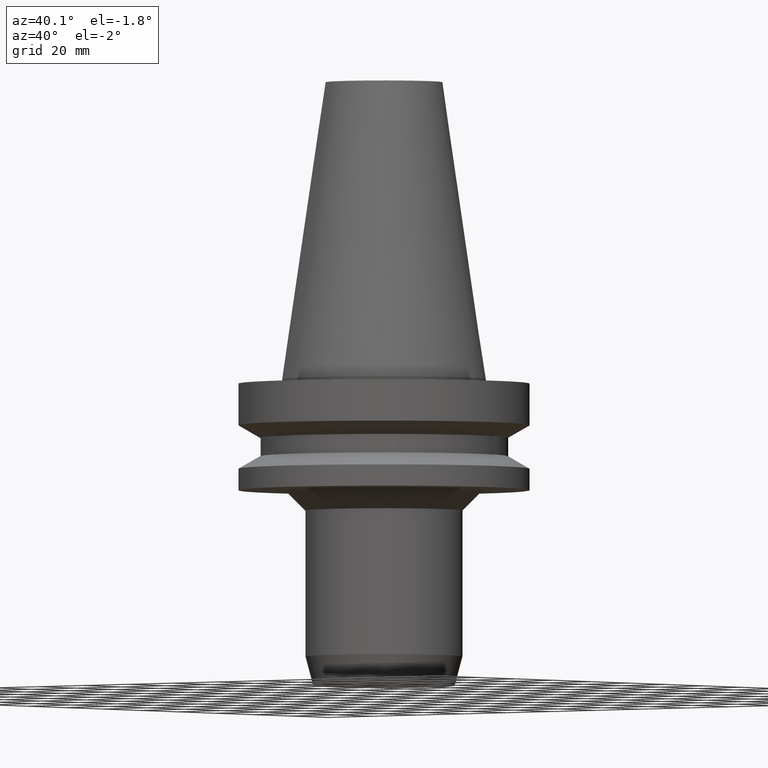
[diagram: clean part render]
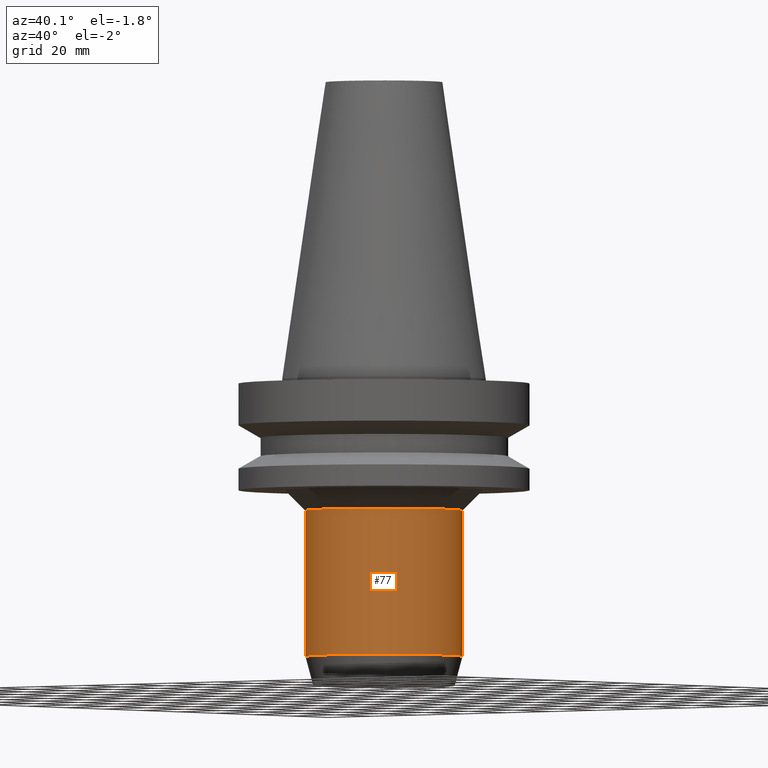
[diagram: same view with one face highlighted and labeled with its STEP entity id]
A machine part, auxiliary view. The second image highlights one B-rep face of the part: STEP entity #77.
In plain terms, the highlighted cylindrical surface (bore or boss wall) has radius 27 mm, axis along (0, 0, -1).
Its self-contained STEP definition (entity closure, byte-faithful):
#77=ADVANCED_FACE('',(#95,#96),#97,.T.);
#95=FACE_BOUND('',#135,.T.);
#96=FACE_BOUND('',#136,.T.);
#97=CYLINDRICAL_SURFACE('',#137,27.0);
#135=EDGE_LOOP('',(#179));
#136=EDGE_LOOP('',(#180));
#137=AXIS2_PLACEMENT_3D('',#181,#182,#183);
#179=ORIENTED_EDGE('',*,*,#240,.F.);
#180=ORIENTED_EDGE('',*,*,#239,.T.);
#181=CARTESIAN_POINT('',(4.28626379634769E-015,8.57252759269539E-015,-69.99999998909));
#182=DIRECTION('',(6.12323399573677E-017,1.22464679914735E-016,-1.0));
#183=DIRECTION('',(-1.23259516440783E-032,1.0,1.22464679914735E-016));
#239=EDGE_CURVE('',#253,#253,#254,.T.);
#240=EDGE_CURVE('',#255,#255,#256,.T.);
#253=VERTEX_POINT('',#279);
#254=CIRCLE('',#280,27.0);
#255=VERTEX_POINT('',#281);
#256=CIRCLE('',#282,27.0);
#279=CARTESIAN_POINT('',(5.81707229461384E-015,27.0,-94.9999999781801));
#280=AXIS2_PLACEMENT_3D('',#306,#307,#308);
#281=CARTESIAN_POINT('',(2.75545529808154E-015,27.0,-45.0));
#282=AXIS2_PLACEMENT_3D('',#309,#310,#311);
#306=CARTESIAN_POINT('',(5.81707229461384E-015,1.16341445892277E-014,-94.9999999781801));
#307=DIRECTION('',(-6.12323399573677E-017,-1.22464679914735E-016,1.0));
#308=DIRECTION('',(-1.23259516440783E-032,1.0,1.22464679914735E-016));
#309=CARTESIAN_POINT('',(2.75545529808154E-015,5.51091059616309E-015,-45.0));
#310=DIRECTION('',(-6.12323399573677E-017,-1.22464679914735E-016,1.0));
#311=DIRECTION('',(-1.23259516440783E-032,1.0,1.22464679914735E-016));